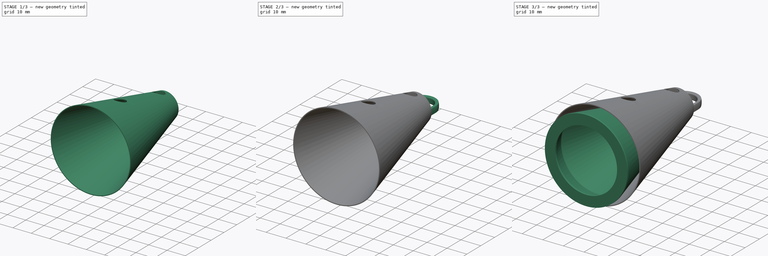
[diagram: build sequence overview — one tinted view per stage of 3, left to right]
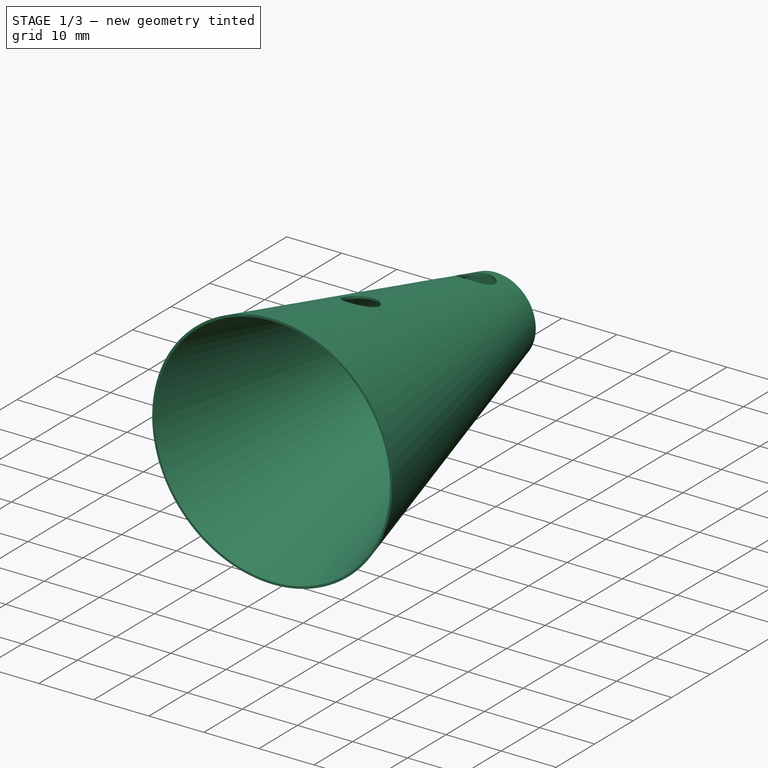
[diagram: stage 1 of 3 — iso view after this stage's code; geometry added in this stage tinted green]
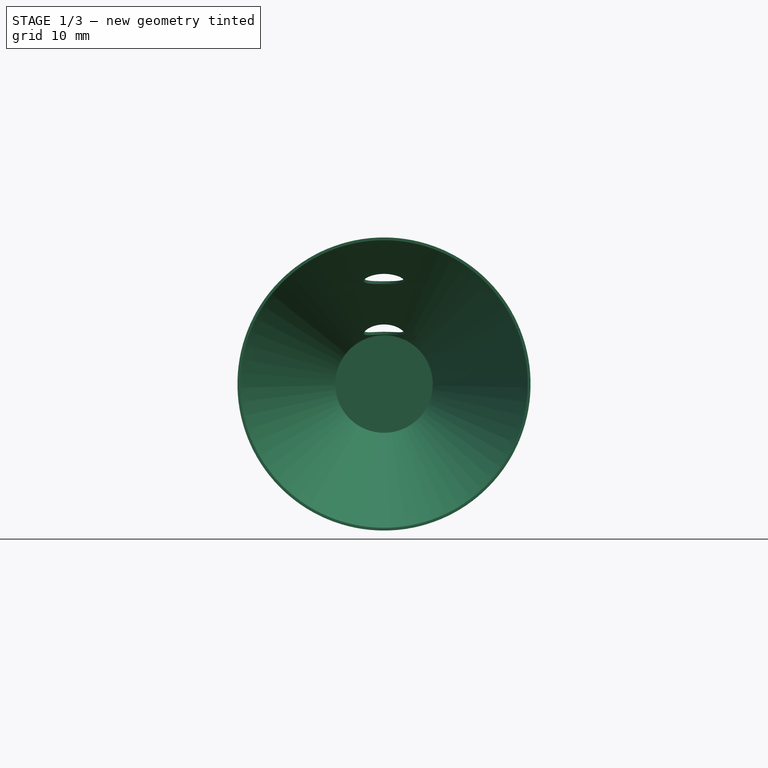
[diagram: stage 1 of 3 — front view after this stage's code; geometry added in this stage tinted green]
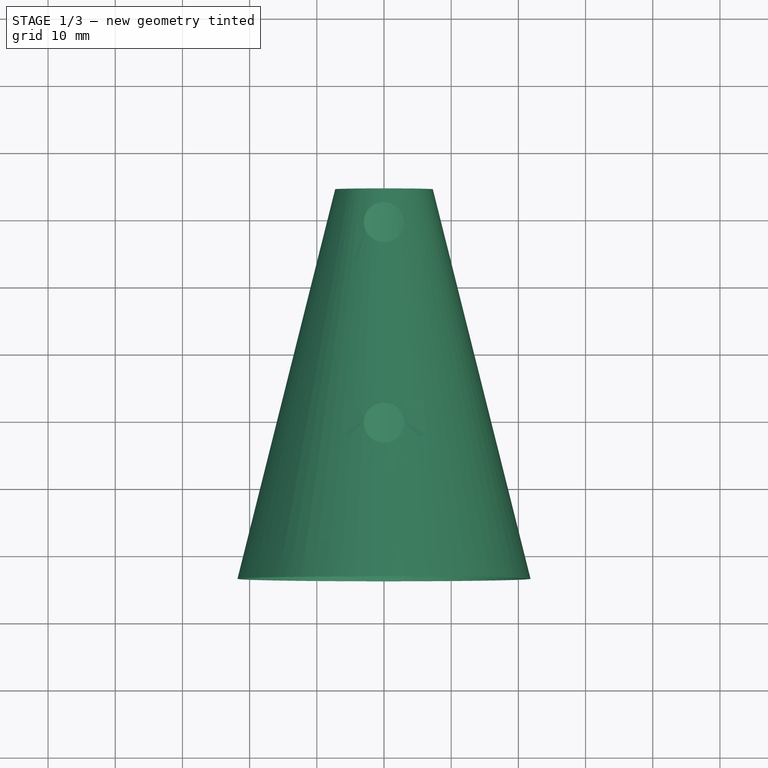
[diagram: stage 1 of 3 — top view after this stage's code; geometry added in this stage tinted green]
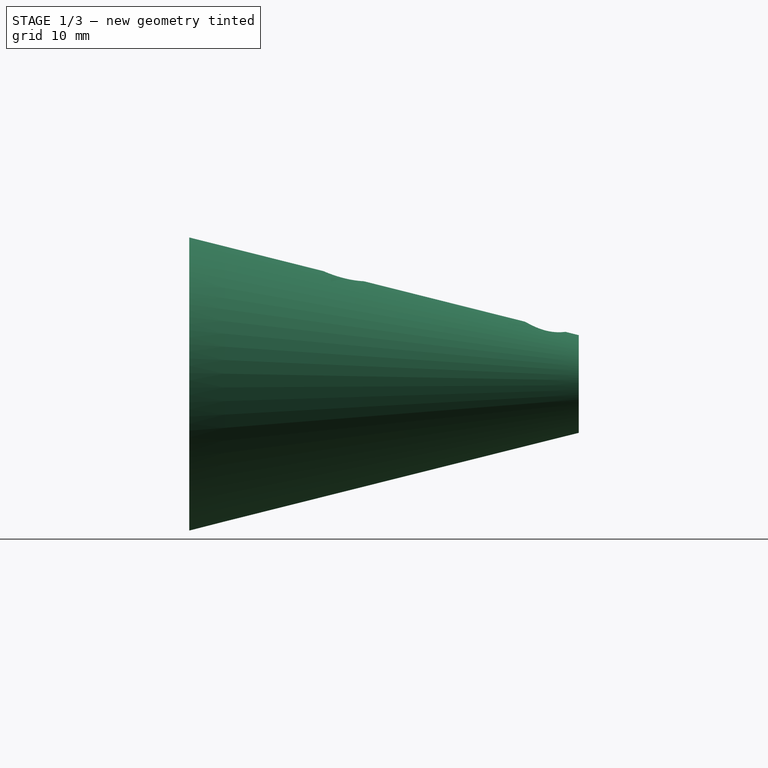
[diagram: stage 1 of 3 — right view after this stage's code; geometry added in this stage tinted green]
FCSTD DOCUMENT  (FreeCAD 0.19R24291 (Git))
Label: connector_magnetic
License: All rights reserved
LicenseURL: http://en.wikipedia.org/wiki/All_rights_reserved
objects: Sketcher::SketchObject×6, PartDesign::Body×3, PartDesign::Revolution×2, PartDesign::ShapeBinder×2, Spreadsheet::Sheet×1, PartDesign::Pad×1, PartDesign::Pocket×1, PartDesign::AdditivePipe×1
note: 21 computed .brp shape members not serialized (recipe doc carries the construction recipe); baked Part::Feature solids carry a one-line shape summary decoded from their .brp

FEATURE [PartDesign::Body] Body  label="male"
  Group = -> [Sketch,Revolution]
  Origin = -> Origin
  Tip = -> Revolution
FEATURE [PartDesign::ShapeBinder] ShapeBinder
  Placement = pos=(0,0,0) rot=(0.57735,0.57735,0.57735;2.0944rad)
  Support = -> [Sketch]
  TraceSupport = false
FEATURE [Sketcher::SketchObject] Sketch001
  ExternalGeometry = -> [ShapeBinder]
  FullyConstrained = true
  MapMode = 5
  Placement = pos=(0,0,0) rot=(0.57735,0.57735,0.57735;2.0944rad)
  Support = -> [YZ_Plane001]
  expr: Constraints[14] = Spreadsheet.metalToMetalDistance
  sketch-geometry (8):
    g0: LineSegment StartX=62.6969 StartY=0 StartZ=0 EndX=62.6969 EndY=7.25687 EndZ=0
    g1: LineSegment StartX=62.6969 StartY=0 StartZ=0 EndX=64.2969 EndY=0 EndZ=0
    g2: LineSegment StartX=64.2969 StartY=0 StartZ=0 EndX=64.2969 EndY=7.2679 EndZ=0
    g3: LineSegment StartX=62.6969 StartY=7.25687 StartZ=0 EndX=6.30668 EndY=21.4023 EndZ=0
    g4: LineSegment StartX=6.30668 StartY=21.4023 StartZ=0 EndX=6.30668 EndY=21.8147 EndZ=0
    g5: LineSegment StartX=6.30668 StartY=21.8147 StartZ=0 EndX=64.2969 EndY=7.2679 EndZ=0
    g6: LineSegment StartX=5.64974 StartY=18.7834 StartZ=0 EndX=6.30668 EndY=21.4023 EndZ=0
    g7: LineSegment StartX=6.30668 StartY=21.4023 StartZ=0 EndX=6.40401 EndY=21.7903 EndZ=0
  constraints (24):
    c: PointOnObject(g0,g-1)
    c: Vertical(g0)
    c: Coincident(g1,g0)
    c: PointOnObject(g1,g-1)
    c: Coincident(g2,g1)
    c: Vertical(g2)
    c: Coincident(g3,g0)
    c: Coincident(g4,g3)
    c: Vertical(g4)
    c: Coincident(g5,g4)
    c: Coincident(g5,g2)
    c: Parallel(g-3,g3)
    c: Parallel(g5,g3)
    c: Perpendicular(g-3,g6)
    c: Distance(g6) = 2.7
    c: PointOnObject(g6,g-3)
    c: Coincident(g3,g6)
    c: Distance(g1) = 1.6
    c: DistanceX(g-3,g0) = 2.1
    c: Coincident(g7,g3)
    c: PointOnObject(g7,g5)
    c: Perpendicular(g3,g7)
    c: Distance(g7) = 0.4
    c: Distance(g-3,g6) = 5
FEATURE [PartDesign::Revolution] Revolution001
  Angle = 360
  Axis = (1e-16,1,-1e-16)
  Base = (0,0,0)
  Placement = pos=(0,0,0) rot=(0.57735,0.57735,0.57735;2.0944rad)
  Profile = -> Sketch001
  ReferenceAxis = -> Y_Axis001
FEATURE [PartDesign::Body] Body002  label="magnet"
  Group = -> [ShapeBinder001,Sketch002,Pad]
  Origin = -> Origin002
  Tip = -> Pad
FEATURE [Sketcher::SketchObject] Sketch003
  ExternalGeometry = -> [Revolution001]
  FullyConstrained = true
  MapMode = 5
  Support = -> [XY_Plane001]
  sketch-geometry (2):
    g0: Circle CenterX=0 CenterY=29.2969 CenterZ=0 NormalX=0 NormalY=0 NormalZ=1 AngleXU=0 Radius=3
    g1: Circle CenterX=0 CenterY=59.2969 CenterZ=0 NormalX=0 NormalY=0 NormalZ=1 AngleXU=0 Radius=3
  constraints (6):
    c: PointOnObject(g0,g-2)
    c: PointOnObject(g1,g-2)
    c: Diameter(g0) = 6
    c: Diameter(g1) = 6
    c: DistanceY(g1,g-3) = 5
    c: DistanceY(g0,g1) = 30
FEATURE [PartDesign::Pocket] Pocket
  BaseFeature = -> Revolution001
  Length = 20
  Length2 = 100
  Placement = pos=(0,0,0) rot=(0.57735,0.57735,0.57735;2.0944rad)
  Profile = -> Sketch003
  Reversed = true
  Type = 1
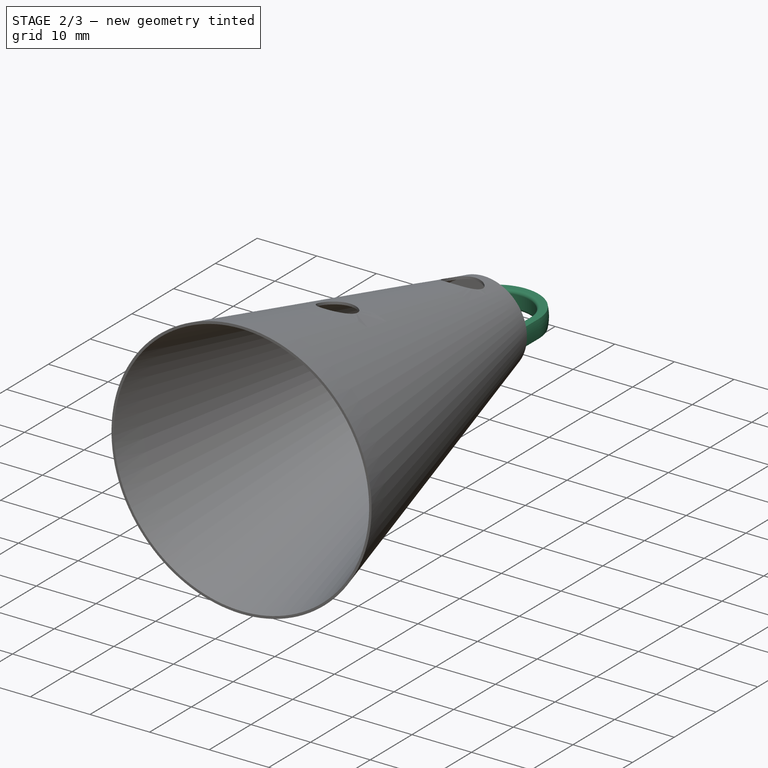
[diagram: stage 2 of 3 — iso view after this stage's code; geometry added in this stage tinted green]
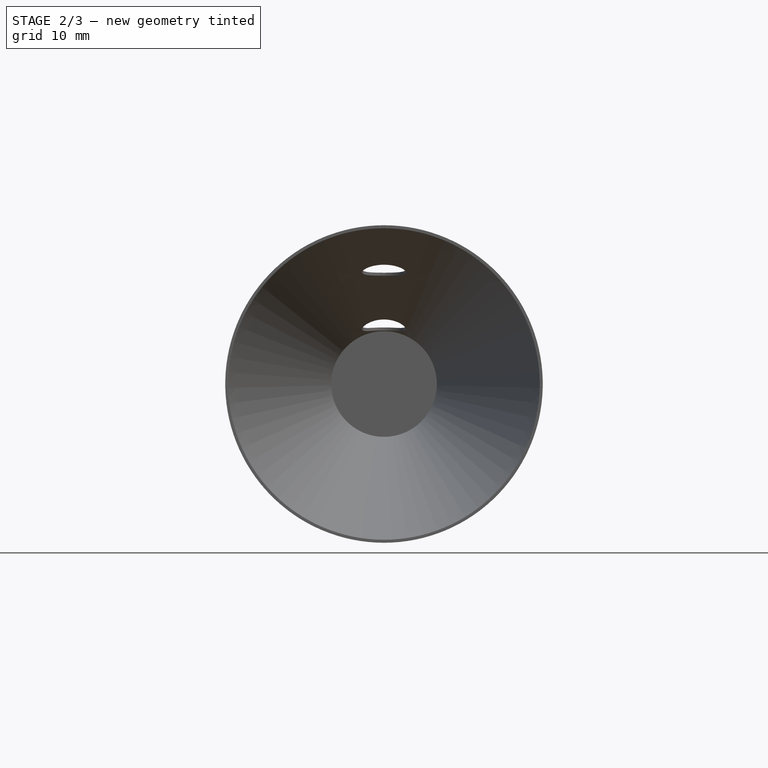
[diagram: stage 2 of 3 — front view after this stage's code; geometry added in this stage tinted green]
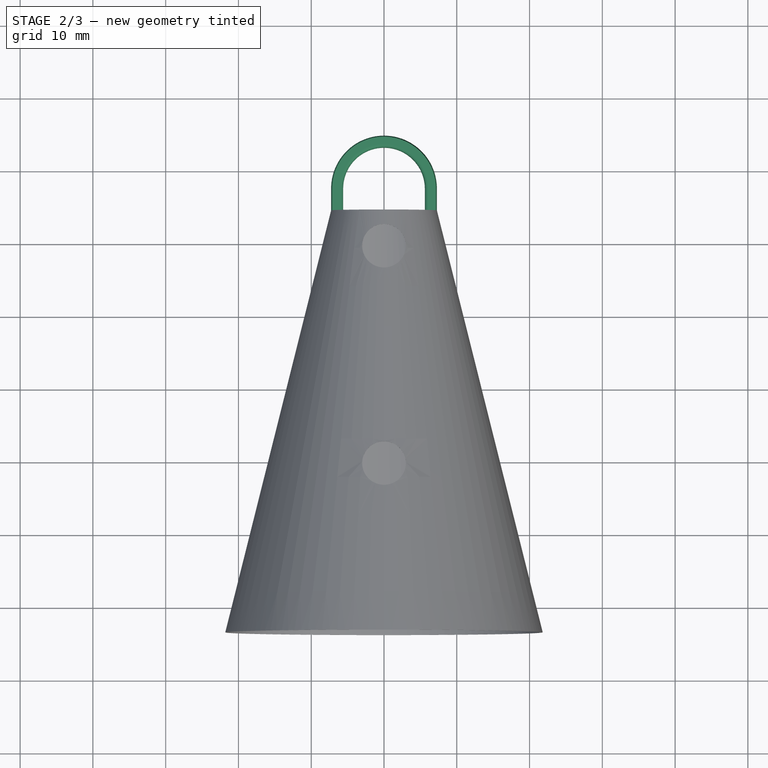
[diagram: stage 2 of 3 — top view after this stage's code; geometry added in this stage tinted green]
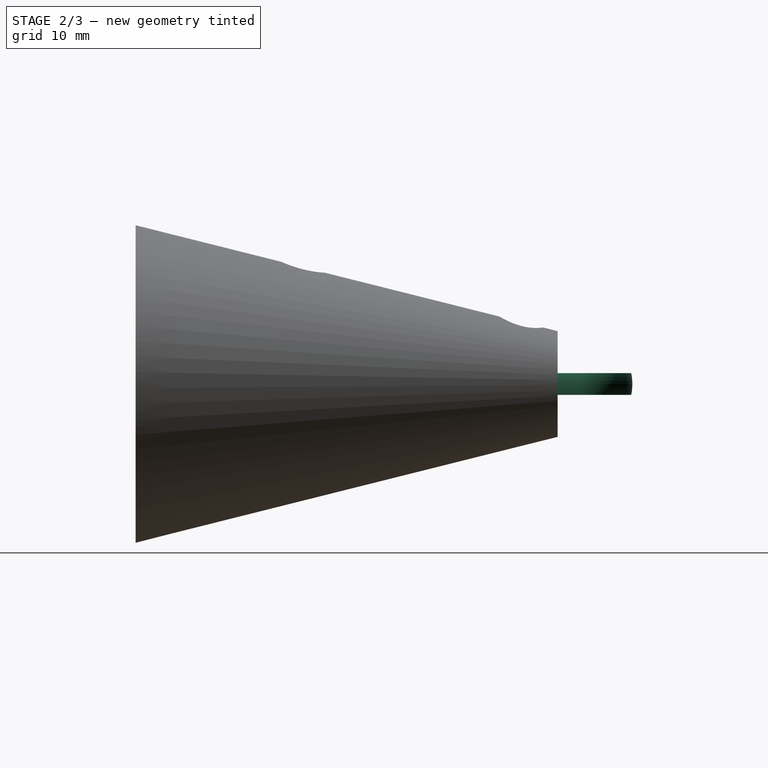
[diagram: stage 2 of 3 — right view after this stage's code; geometry added in this stage tinted green]
FEATURE [Sketcher::SketchObject] Sketch004
  ExternalGeometry = -> [Pocket]
  FullyConstrained = true
  MapMode = 5
  Support = -> [XY_Plane001]
  sketch-geometry (5):
    g0: LineSegment StartX=-7.2679 StartY=64.2969 StartZ=0 EndX=-7.2679 EndY=67.2969 EndZ=0
    g1: LineSegment StartX=7.2679 StartY=64.2969 StartZ=0 EndX=7.2679 EndY=67.2969 EndZ=0
    g2: LineSegment StartX=-7.2679 StartY=67.2969 StartZ=0 EndX=7.2679 EndY=67.2969 EndZ=0
    g3: GeomPoint X=-8.68e-14 Y=67.2969 Z=0
    g4: ArcOfCircle CenterX=-8.68e-14 CenterY=67.2969 CenterZ=0 NormalX=0 NormalY=0 NormalZ=1 AngleXU=0 Radius=7.2679 StartAngle=0 EndAngle=3.14159
  constraints (12):
    c: Coincident(g0,g-3)
    c: Vertical(g0)
    c: Coincident(g1,g-3)
    c: Vertical(g1)
    c: Distance(g0) = 3
    c: Equal(g0,g1)
    c: Coincident(g2,g0)
    c: Coincident(g2,g1)
    c: PointOnObject(g3,g2)
    c: Coincident(g4,g3)
    c: Coincident(g4,g0)
    c: Coincident(g4,g1)
FEATURE [Sketcher::SketchObject] Sketch005
  ExternalGeometry = -> [Pocket,Sketch004]
  FullyConstrained = false
  MapMode = 5
  Placement = pos=(1.42e-14,64.2969,-2.12e-14) rot=(0.57735,0.57735,0.57735;4.18879rad)
  Support = -> [Pocket]
  sketch-geometry (9):
    g0: LineSegment StartX=1.5 StartY=7.11143 StartZ=0 EndX=1.5 EndY=6.11143 EndZ=0
    g1: LineSegment StartX=-1.5 StartY=7.11143 StartZ=0 EndX=-1.5 EndY=6.11143 EndZ=0
    g2: LineSegment StartX=1 StartY=5.61143 StartZ=0 EndX=-1 EndY=5.61143 EndZ=0
    g3: ArcOfCircle CenterX=-1 CenterY=6.11143 CenterZ=0 NormalX=0 NormalY=0 NormalZ=1 AngleXU=0 Radius=0.5 StartAngle=3.14159 EndAngle=4.71239
    g4: GeomPoint X=-1.5 Y=5.61143 Z=0
    g5: ArcOfCircle CenterX=1 CenterY=6.11143 CenterZ=0 NormalX=0 NormalY=0 NormalZ=1 AngleXU=0 Radius=0.5 StartAngle=4.71239 EndAngle=6.28319
    g6: GeomPoint X=1.5 Y=5.61143 Z=0
    g7: LineSegment StartX=-1 StartY=6.11143 StartZ=0 EndX=1 EndY=6.11143 EndZ=0
    g8: ArcOfCircle CenterX=0 CenterY=0 CenterZ=0 NormalX=0 NormalY=0 NormalZ=1 AngleXU=0 Radius=7.2679 StartAngle=1.36292 EndAngle=1.77868
  constraints (21):
    c: Vertical(g0)
    c: Vertical(g1)
    c: Horizontal(g2)
    c: Distance(g6,g4) = 3
    c: Distance(g0,g6) = 1.5
    c: PointOnObject(g4,g2)
    c: PointOnObject(g4,g1)
    c: Tangent(g2,g3) = 1.5708
    c: Tangent(g1,g3) = -1.5708
    c: PointOnObject(g6,g0)
    c: PointOnObject(g6,g2)
    c: Tangent(g0,g5) = 1.5708
    c: Tangent(g2,g5) = 1.5708
    c: Coincident(g7,g3)
    c: Coincident(g7,g5)
    c: Horizontal(g7)
    c: Distance(g5,g2) = 0.5
    c: Coincident(g8,g-1)
    c: Coincident(g8,g1)
    c: Coincident(g8,g0)
    c: Equal(g1,g0)
FEATURE [PartDesign::AdditivePipe] AdditivePipe
  AuxilleryCurvelinear = true
  AuxillerySpineTangent = false
  BaseFeature = -> Pocket
  Binormal = (0,0,0)
  Mode = 0
  Placement = pos=(0,0,0) rot=(0.57735,0.57735,0.57735;2.0944rad)
  Profile = -> Sketch005
  Spine = -> Sketch004
  SpineTangent = false
  Transformation = 0
  Transition = 0
FEATURE [PartDesign::Body] Body001  label="female"
  Group = -> [ShapeBinder,Sketch001,Revolution001,Sketch003,Pocket,Sketch004,Sketch005,AdditivePipe]
  Origin = -> Origin001
  Tip = -> AdditivePipe
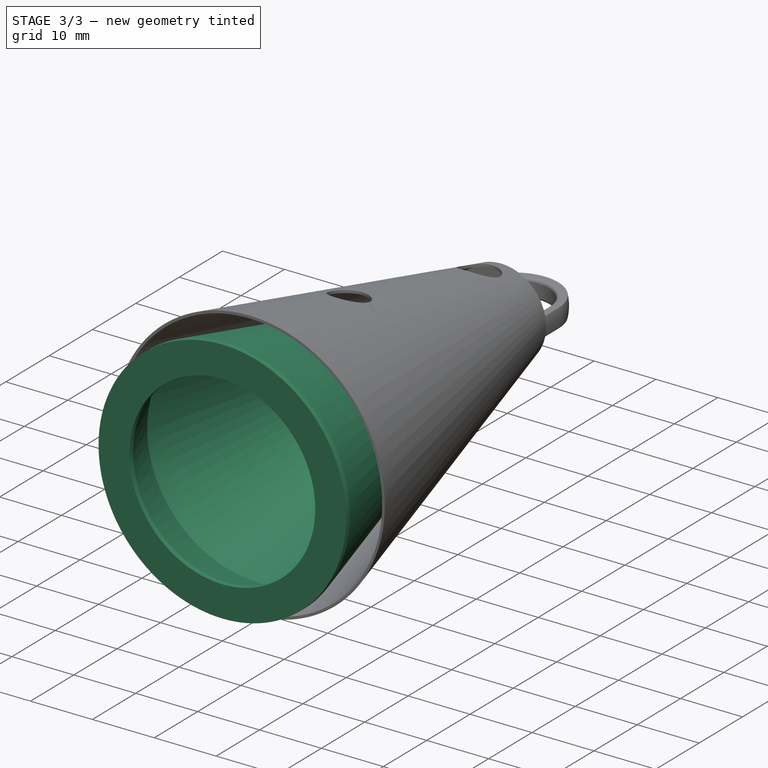
[diagram: stage 3 of 3 — iso view after this stage's code; geometry added in this stage tinted green]
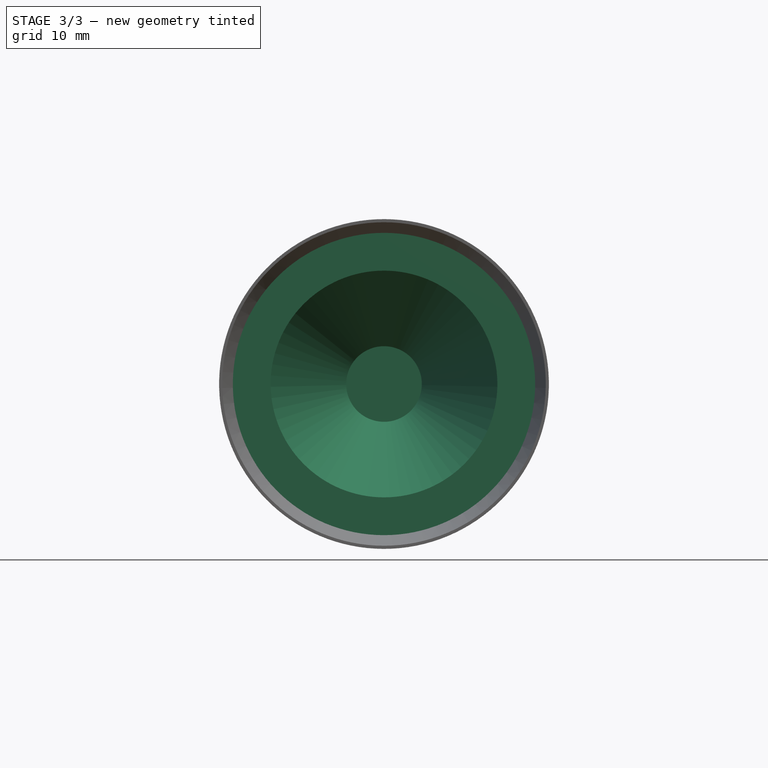
[diagram: stage 3 of 3 — front view after this stage's code; geometry added in this stage tinted green]
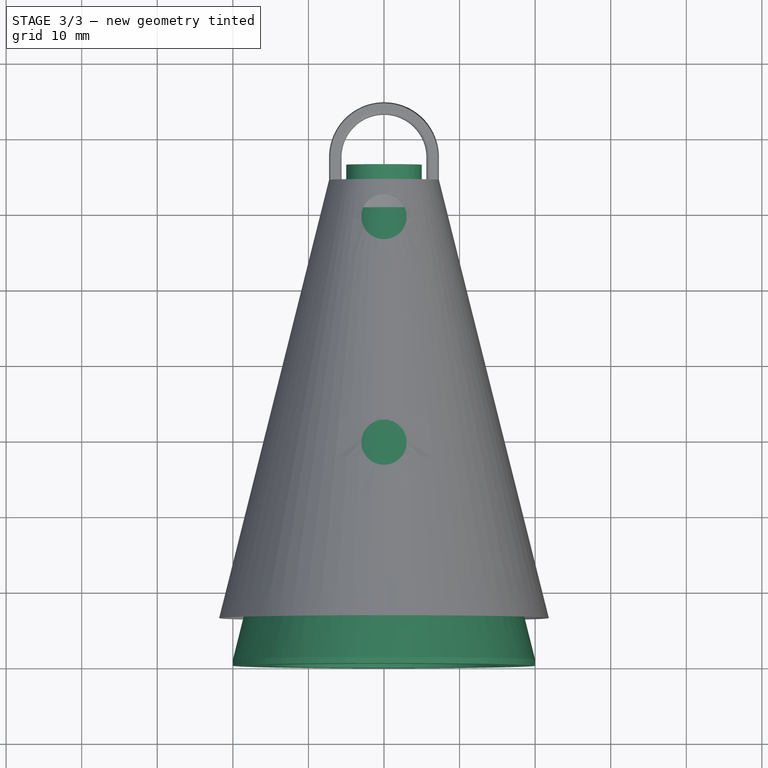
[diagram: stage 3 of 3 — top view after this stage's code; geometry added in this stage tinted green]
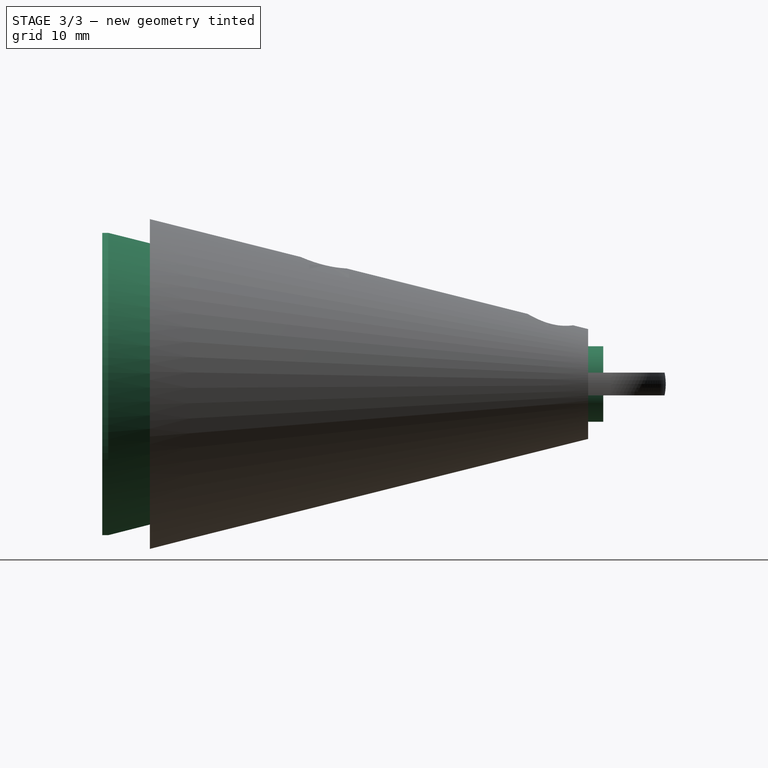
[diagram: stage 3 of 3 — right view after this stage's code; geometry added in this stage tinted green]
FEATURE [Spreadsheet::Sheet] Spreadsheet
  cells = A1=Metal-To-Metal Distance; B1(metalToMetalDistance)=2.7; A2=Wall Width; B2(wallWidth)=0.4; A3=Male End Radius; B3(maleEndRadius)=20
FEATURE [Sketcher::SketchObject] Sketch
  FullyConstrained = true
  MapMode = 5
  Placement = pos=(0,0,0) rot=(0.57735,0.57735,0.57735;2.0944rad)
  Support = -> [YZ_Plane]
  expr: Constraints[3] = Spreadsheet.maleEndRadius
  sketch-geometry (11):
    g0: LineSegment StartX=0.8 StartY=20 StartZ=0 EndX=0 EndY=20 EndZ=0
    g1: LineSegment StartX=0.8 StartY=20 StartZ=0 EndX=60.5969 EndY=5 EndZ=0
    g2: LineSegment StartX=60.5969 StartY=5 StartZ=0 EndX=60.5969 EndY=0 EndZ=0
    g3: LineSegment StartX=0 StartY=20 StartZ=0 EndX=0 EndY=15 EndZ=0
    g4: LineSegment StartX=58.9969 StartY=5.00136 StartZ=0 EndX=58.9969 EndY=0 EndZ=0
    g5: LineSegment StartX=58.9969 StartY=0 StartZ=0 EndX=60.5969 EndY=0 EndZ=0
    g6: LineSegment StartX=58.9969 StartY=5.00136 StartZ=0 EndX=58.9969 EndY=5.40136 EndZ=0
    g7: LineSegment StartX=0.8 StartY=19.6 StartZ=0 EndX=0.8 EndY=20 EndZ=0
    g8: LineSegment StartX=0.8 StartY=15 StartZ=0 EndX=0 EndY=15 EndZ=0
    g9: LineSegment StartX=0.8 StartY=15 StartZ=0 EndX=8.06616 EndY=17.7773 EndZ=0
    g10: LineSegment StartX=8.06616 StartY=17.7773 StartZ=0 EndX=58.9969 EndY=5.00136 EndZ=0
  constraints (33):
    c: Coincident(g2,g1)
    c: PointOnObject(g2,g-1)
    c: Vertical(g2)
    c: DistanceY(g-1,g0) = 20
    c: Horizontal(g0)
    c: Coincident(g0,g1)
    c: Coincident(g3,g0)
    c: Vertical(g3)
    c: Coincident(g4,g10)
    c: PointOnObject(g4,g-1)
    c: Vertical(g4)
    c: Coincident(g5,g4)
    c: Coincident(g5,g2)
    c: Coincident(g6,g10)
    c: PointOnObject(g6,g1)
    c: Vertical(g6)
    c: Coincident(g7,g0)
    c: Vertical(g7)
    c: Equal(g7,g6)
    c: Distance(g5) = 1.6
    c: Distance(g2) = 5
    c: Distance(g0,g6) = 60
    c: PointOnObject(g3,g-2)
    c: Distance(g7) = 0.4
    c: Horizontal(g8)
    c: Coincident(g3,g8)
    c: Distance(g8) = 0.8
    c: Coincident(g9,g8)
    c: Coincident(g10,g9)
    c: Distance(g3) = 5
    c: Parallel(g10,g1)
    c: Equal(g0,g8)
    c: Angle(g9,g10) = 2.53073
FEATURE [PartDesign::Revolution] Revolution
  Angle = 360
  Axis = (1e-16,1,-1e-16)
  Base = (0,0,0)
  Placement = pos=(0,0,0) rot=(0.57735,0.57735,0.57735;2.0944rad)
  Profile = -> Sketch
  ReferenceAxis = -> Y_Axis
FEATURE [PartDesign::ShapeBinder] ShapeBinder001
  Placement = pos=(0,0,0) rot=(0.57735,0.57735,0.57735;2.0944rad)
  Support = -> [Revolution001]
  TraceSupport = false
FEATURE [Sketcher::SketchObject] Sketch002
  FullyConstrained = true
  MapMode = 5
  Placement = pos=(7.1e-15,64.2969,-2.12e-14) rot=(0.57735,0.57735,0.57735;4.18879rad)
  Support = -> [ShapeBinder001]
  sketch-geometry (1):
    g0: Circle CenterX=0 CenterY=0 CenterZ=0 NormalX=0 NormalY=0 NormalZ=1 AngleXU=0 Radius=5
  constraints (2):
    c: Coincident(g0,g-1)
    c: Radius(g0) = 5
FEATURE [PartDesign::Pad] Pad
  Direction = (1,1,1)
  Length = 2
  Length2 = 100
  Placement = pos=(0,0,0) rot=(0.57735,0.57735,0.57735;2.0944rad)
  Profile = -> Sketch002
  Type = 0
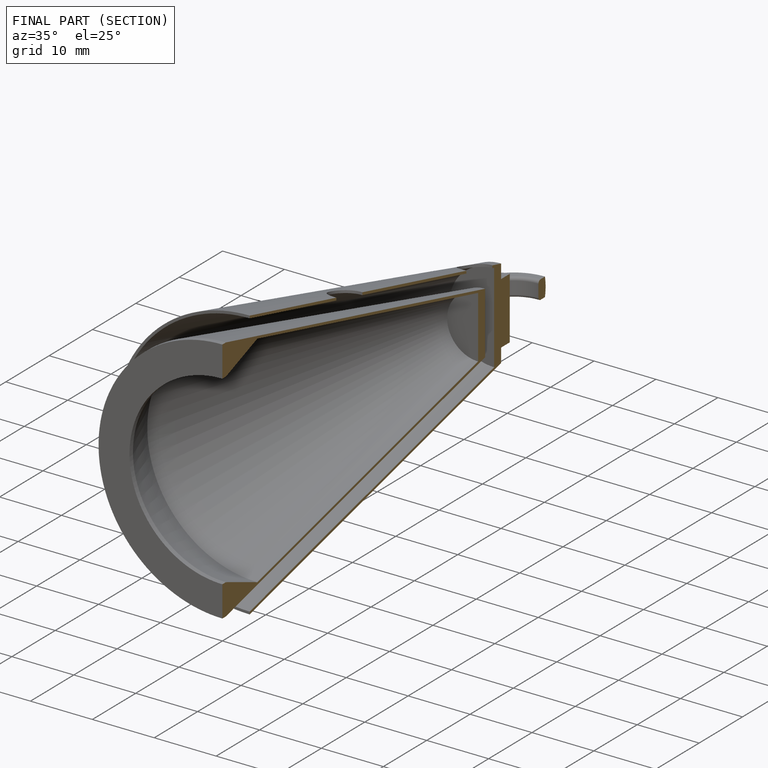
[diagram: finished part — half-section view (interior)]
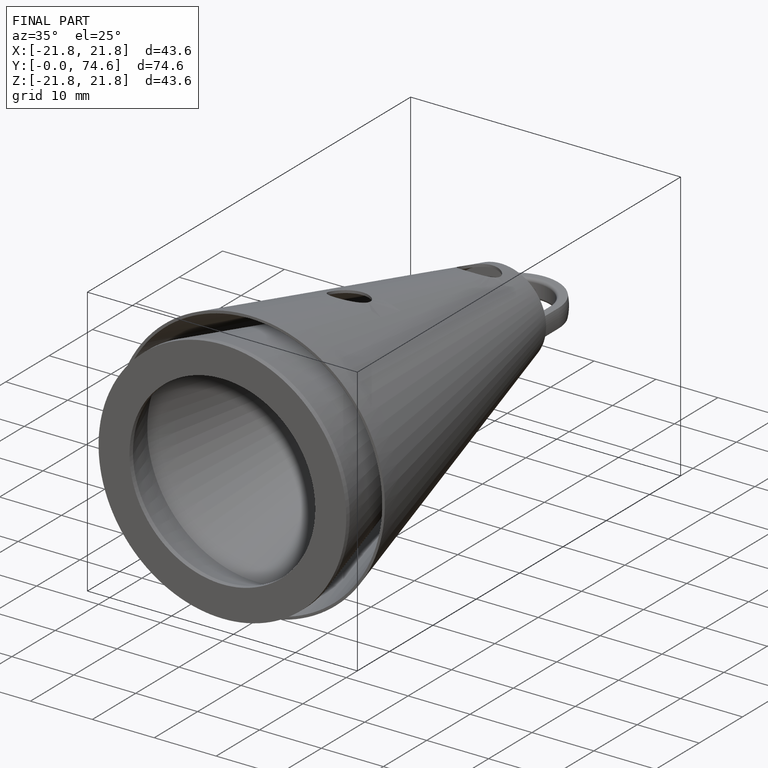
[diagram: finished part — iso view with bounding-box wireframe]
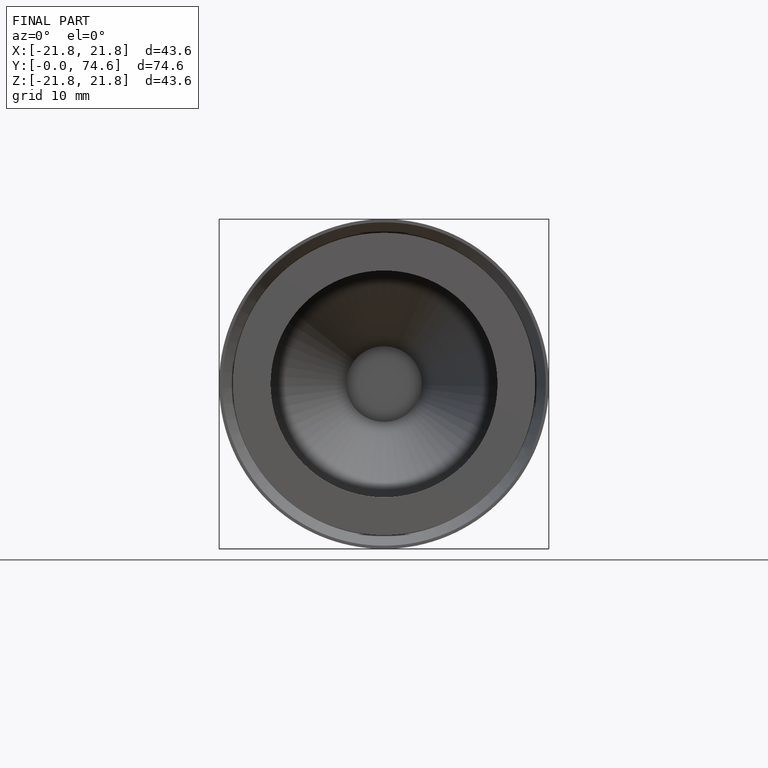
[diagram: finished part — front view with bounding-box wireframe]
